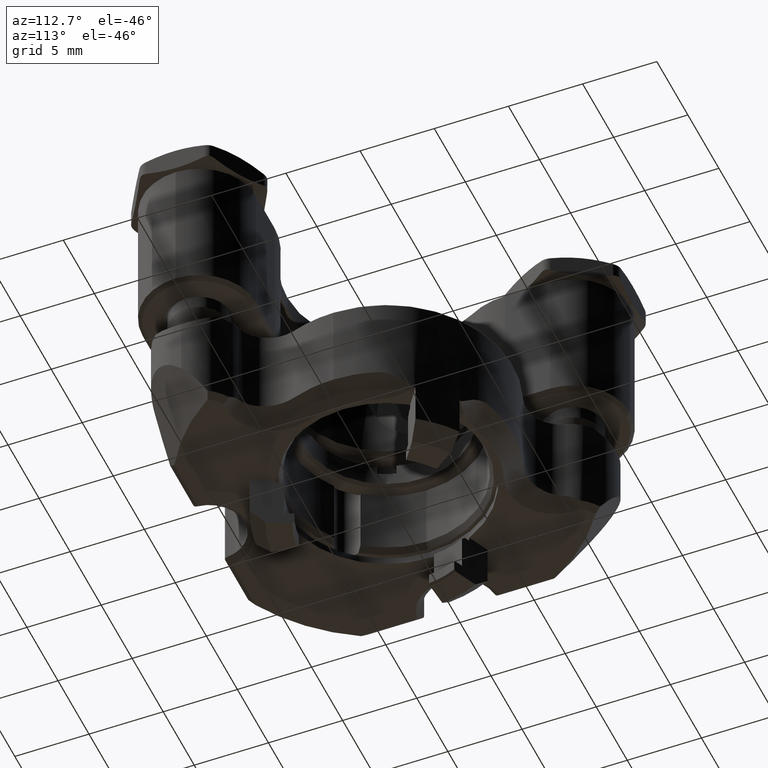
[diagram: clean part render]
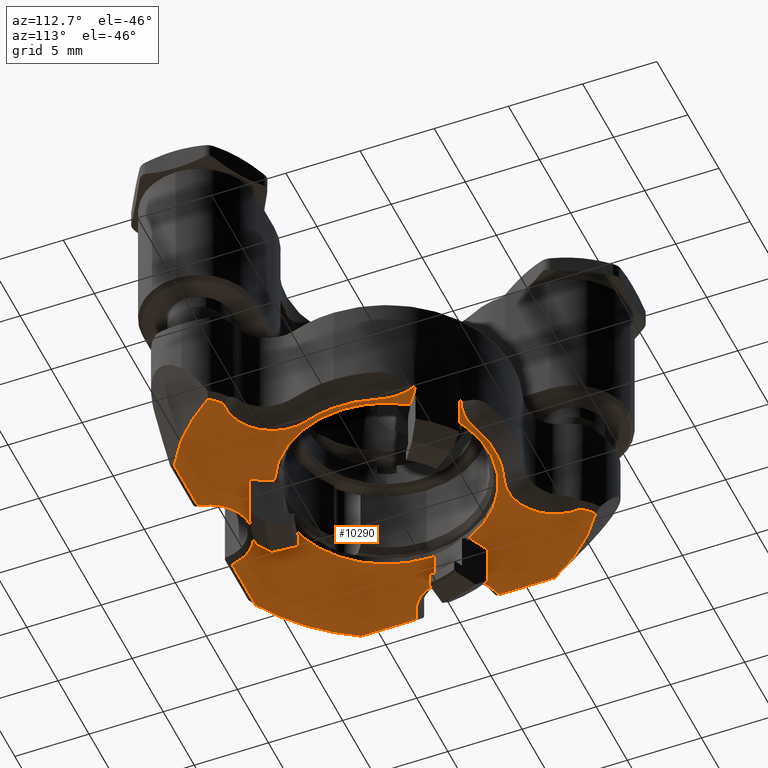
[diagram: same view with one face highlighted and labeled with its STEP entity id]
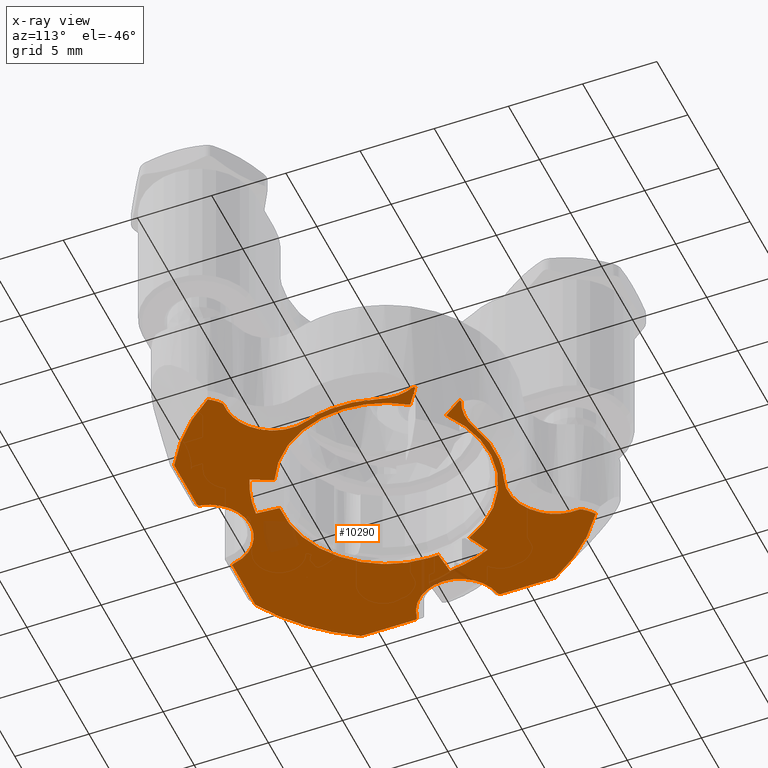
[diagram: x-ray of the same camera — body ghosted, the highlighted face saturated]
A machine part, auxiliary view. The second image highlights one B-rep face of the part: STEP entity #10290.
The next image is the same camera in x-ray: the body ghosted, the highlighted face saturated — about 4% of this face is hidden behind the body in this view.
In plain terms, the highlighted planar face has unit normal (0, 0, -1).
Its self-contained STEP definition (entity closure, byte-faithful):
#105 = CARTESIAN_POINT ( 'NONE',  ( 9.625381360444452028, -0.9384920154934658365, 1.866900000000000670 ) ) ;
#129 = CARTESIAN_POINT ( 'NONE',  ( -0.1349270293056913927, 8.919676375648551314, 1.866900000000004445 ) ) ;
#131 = ORIENTED_EDGE ( 'NONE', *, *, #4356, .T. ) ;
#169 = CIRCLE ( 'NONE', #3546, 3.175000000000000711 ) ;
#345 = CIRCLE ( 'NONE', #2415, 8.509000000000002117 ) ;
#375 = DIRECTION ( 'NONE',  ( 1.000000000000000000, 0.000000000000000000, 0.000000000000000000 ) ) ;
#376 = VECTOR ( 'NONE', #8580, 1000.000000000000114 ) ;
#383 = EDGE_CURVE ( 'NONE', #10112, #14778, #14631, .T. ) ;
#388 = ORIENTED_EDGE ( 'NONE', *, *, #15631, .T. ) ;
#401 = CIRCLE ( 'NONE', #9473, 8.509000000000000341 ) ;
#435 = CARTESIAN_POINT ( 'NONE',  ( 1.125290265099540887, -9.778999999999996362, 1.866900000000000670 ) ) ;
#454 = CARTESIAN_POINT ( 'NONE',  ( -4.523775304290986732, -9.710356770546576755, 1.866900000000000448 ) ) ;
#513 = ORIENTED_EDGE ( 'NONE', *, *, #8160, .F. ) ;
#545 = ORIENTED_EDGE ( 'NONE', *, *, #1460, .F. ) ;
#608 = CARTESIAN_POINT ( 'NONE',  ( 9.766829802217458223, -1.036659752382403266, 1.866900000000000892 ) ) ;
#622 = CARTESIAN_POINT ( 'NONE',  ( 9.710009568648214184, 4.523529990079061314, 1.866900000000000226 ) ) ;
#642 = VERTEX_POINT ( 'NONE', #9741 ) ;
#697 = DIRECTION ( 'NONE',  ( 0.000000000000000000, -0.000000000000000000, -1.000000000000000000 ) ) ;
#710 = B_SPLINE_CURVE_WITH_KNOTS ( 'NONE', 3,
 ( #3404, #11990, #8359, #14686 ),
 .UNSPECIFIED., .F., .F.,
 ( 4, 4 ),
 ( 0.000000000000000000, 0.0001381059229925669452 ),
 .UNSPECIFIED. ) ;
#728 = LINE ( 'NONE', #8125, #9566 ) ;
#729 = VERTEX_POINT ( 'NONE', #12678 ) ;
#770 = CARTESIAN_POINT ( 'NONE',  ( -8.703920634261379519, 4.162785721828859309, 1.866900000000000226 ) ) ;
#799 = CARTESIAN_POINT ( 'NONE',  ( -12.11065533895455104, -4.955829525085864162, 1.866900000000000670 ) ) ;
#800 = CARTESIAN_POINT ( 'NONE',  ( -8.748164744855035480, 6.658561896911045608, 1.866900000000000670 ) ) ;
#915 = CARTESIAN_POINT ( 'NONE',  ( -1.777999999999996694, 1.778000000000000025, 1.866900000000000670 ) ) ;
#937 = VERTEX_POINT ( 'NONE', #15813 ) ;
#1014 = LINE ( 'NONE', #15798, #4776 ) ;
#1019 = LINE ( 'NONE', #13701, #376 ) ;
#1046 = VERTEX_POINT ( 'NONE', #10061 ) ;
#1063 = DIRECTION ( 'NONE',  ( 1.000000000000000000, 0.000000000000000000, 0.000000000000000000 ) ) ;
#1087 = VECTOR ( 'NONE', #14511, 1000.000000000000000 ) ;
#1104 = CARTESIAN_POINT ( 'NONE',  ( 1.761081315064194630, 11.66358740416936790, 1.866900000000011550 ) ) ;
#1142 = AXIS2_PLACEMENT_3D ( 'NONE', #3414, #12879, #3273 ) ;
#1179 = DIRECTION ( 'NONE',  ( 1.000000000000000000, 5.603159228743605945E-16, 0.000000000000000000 ) ) ;
#1235 = VECTOR ( 'NONE', #12403, 999.9999999999998863 ) ;
#1238 = B_SPLINE_CURVE_WITH_KNOTS ( 'NONE', 3,
 ( #2186, #12077, #5943, #2956, #2266, #435 ),
 .UNSPECIFIED., .F., .F.,
 ( 4, 2, 4 ),
 ( 0.000000000000000000, 0.0001318373555152113912, 0.0002636747110304229992 ),
 .UNSPECIFIED. ) ;
#1247 = DIRECTION ( 'NONE',  ( -0.000000000000000000, 0.000000000000000000, 1.000000000000000000 ) ) ;
#1311 = CARTESIAN_POINT ( 'NONE',  ( -1.918867322373763118, 0.1678791375180655188, 1.866900000000000670 ) ) ;
#1316 = CIRCLE ( 'NONE', #11687, 3.175000000000000266 ) ;
#1408 = EDGE_CURVE ( 'NONE', #14047, #2855, #2618, .T. ) ;
#1460 = EDGE_CURVE ( 'NONE', #10441, #15808, #2084, .T. ) ;
#1475 = VERTEX_POINT ( 'NONE', #6227 ) ;
#1526 = VERTEX_POINT ( 'NONE', #11562 ) ;
#1702 = CARTESIAN_POINT ( 'NONE',  ( -12.11065533895455104, -4.955829525085864162, 1.866900000000000670 ) ) ;
#1827 = EDGE_CURVE ( 'NONE', #14098, #14282, #1316, .T. ) ;
#1831 = CARTESIAN_POINT ( 'NONE',  ( -7.478970567433669281, 5.769862566428734851, 1.866900000000000670 ) ) ;
#1935 = CARTESIAN_POINT ( 'NONE',  ( -4.681290265099538495, -9.778999999999998138, 1.866900000000000670 ) ) ;
#1941 = VERTEX_POINT ( 'NONE', #105 ) ;
#1964 = VECTOR ( 'NONE', #15783, 1000.000000000000227 ) ;
#2080 = ORIENTED_EDGE ( 'NONE', *, *, #15993, .T. ) ;
#2084 = CIRCLE ( 'NONE', #11147, 3.175000000000000266 ) ;
#2172 = VERTEX_POINT ( 'NONE', #3662 ) ;
#2173 = VECTOR ( 'NONE', #375, 1000.000000000000000 ) ;
#2181 = EDGE_CURVE ( 'NONE', #9655, #937, #4605, .T. ) ;
#2186 = CARTESIAN_POINT ( 'NONE',  ( 0.9384920154934662806, -9.625381360444446699, 1.866900000000000670 ) ) ;
#2266 = CARTESIAN_POINT ( 'NONE',  ( 1.080837255628039673, -9.778999999999660631, 1.866900000000000226 ) ) ;
#2278 = CARTESIAN_POINT ( 'NONE',  ( -9.084027184002565036, 2.362988505607594991, 1.866900000000000892 ) ) ;
#2342 = DIRECTION ( 'NONE',  ( -0.000000000000000000, -0.000000000000000000, 1.000000000000000000 ) ) ;
#2395 = CARTESIAN_POINT ( 'NONE',  ( -3.282359656813834903, 8.950648278361187593, 1.866899999999997339 ) ) ;
#2415 = AXIS2_PLACEMENT_3D ( 'NONE', #915, #3199, #3363 ) ;
#2419 = VERTEX_POINT ( 'NONE', #1702 ) ;
#2444 = CARTESIAN_POINT ( 'NONE',  ( -8.950648278361198251, 3.282359656813811810, 1.866899999999993787 ) ) ;
#2471 = B_SPLINE_CURVE_WITH_KNOTS ( 'NONE', 3,
 ( #10432, #6958, #5595, #454, #10359, #10518 ),
 .UNSPECIFIED., .F., .F.,
 ( 4, 2, 4 ),
 ( 0.000000000000000000, 0.0001318351666018745900, 0.0002636703332037491801 ),
 .UNSPECIFIED. ) ;
#2591 = LINE ( 'NONE', #12583, #1235 ) ;
#2618 = CIRCLE ( 'NONE', #15320, 6.959600000000000897 ) ;
#2719 = CARTESIAN_POINT ( 'NONE',  ( -5.769862566428733963, 7.478970567433668393, 1.866900000000000670 ) ) ;
#2855 = VERTEX_POINT ( 'NONE', #9079 ) ;
#2900 = DIRECTION ( 'NONE',  ( 0.000000000000000000, -0.000000000000000000, -1.000000000000000000 ) ) ;
#2956 = CARTESIAN_POINT ( 'NONE',  ( 1.036264016352649087, -9.766650101835868014, 1.866900000000000004 ) ) ;
#2980 = CARTESIAN_POINT ( 'NONE',  ( 9.779000000000003467, -0.9905999999999955952, 1.866900000000000670 ) ) ;
#3160 = EDGE_CURVE ( 'NONE', #14778, #13198, #1014, .T. ) ;
#3199 = DIRECTION ( 'NONE',  ( -0.000000000000000000, 0.000000000000000000, 1.000000000000000000 ) ) ;
#3269 = CARTESIAN_POINT ( 'NONE',  ( -11.97965465320958955, -4.920310096600034377, 1.866900000000019322 ) ) ;
#3273 = DIRECTION ( 'NONE',  ( 1.000000000000000000, 0.000000000000000000, 0.000000000000000000 ) ) ;
#3298 = CARTESIAN_POINT ( 'NONE',  ( -10.54099999999999859, -7.112000000000000099, 1.866900000000000670 ) ) ;
#3332 = CARTESIAN_POINT ( 'NONE',  ( -4.494492015493463555, -9.625381360444444923, 1.866900000000000670 ) ) ;
#3363 = DIRECTION ( 'NONE',  ( 1.000000000000000000, 0.000000000000000000, 0.000000000000000000 ) ) ;
#3404 = CARTESIAN_POINT ( 'NONE',  ( 4.955829525085820642, 12.11065533895449420, 1.866900000000000670 ) ) ;
#3414 = CARTESIAN_POINT ( 'NONE',  ( -1.778000000000000247, 1.777999999999998471, 1.866900000000001114 ) ) ;
#3481 = CIRCLE ( 'NONE', #14358, 8.509000000000000341 ) ;
#3546 = AXIS2_PLACEMENT_3D ( 'NONE', #14715, #4327, #5480 ) ;
#3587 = CARTESIAN_POINT ( 'NONE',  ( -9.005163656573085262, 0.5633168964209211982, 1.866899999999997117 ) ) ;
#3602 = LINE ( 'NONE', #1311, #13300 ) ;
#3624 = CARTESIAN_POINT ( 'NONE',  ( 0.2853970343089888284, 8.811679326182735750, 1.866899999999984017 ) ) ;
#3630 = LINE ( 'NONE', #15966, #1087 ) ;
#3662 = CARTESIAN_POINT ( 'NONE',  ( 4.762212404831604573, -9.778999999999996362, 1.866900000000001114 ) ) ;
#3745 = CARTESIAN_POINT ( 'NONE',  ( -1.777999999999996694, 1.778000000000000025, 1.866900000000000670 ) ) ;
#3794 = CARTESIAN_POINT ( 'NONE',  ( -1.777999999999996694, 1.778000000000000025, 1.866900000000000670 ) ) ;
#3807 = ORIENTED_EDGE ( 'NONE', *, *, #5018, .T. ) ;
#3832 = CARTESIAN_POINT ( 'NONE',  ( -8.703920634261379519, 4.162785721828859309, 1.866900000000000226 ) ) ;
#3836 = VERTEX_POINT ( 'NONE', #800 ) ;
#3851 = EDGE_CURVE ( 'NONE', #15272, #15564, #728, .T. ) ;
#3936 = DIRECTION ( 'NONE',  ( 1.000000000000000000, 0.000000000000000000, 0.000000000000000000 ) ) ;
#3939 = CARTESIAN_POINT ( 'NONE',  ( -8.829414443112984401, 6.540419065082113015, 1.866900000000000670 ) ) ;
#4192 = CARTESIAN_POINT ( 'NONE',  ( 0.000000000000000000, -9.778999999999996362, 1.866900000000000670 ) ) ;
#4195 = CARTESIAN_POINT ( 'NONE',  ( -1.777999999999996694, 1.778000000000000025, 1.866900000000000670 ) ) ;
#4240 = CIRCLE ( 'NONE', #9668, 2.768599999999996175 ) ;
#4291 = CIRCLE ( 'NONE', #10499, 6.959600000000000897 ) ;
#4316 = VERTEX_POINT ( 'NONE', #14271 ) ;
#4327 = DIRECTION ( 'NONE',  ( -0.000000000000000000, -0.000000000000000000, -1.000000000000000000 ) ) ;
#4328 = CIRCLE ( 'NONE', #9247, 2.666999999999999371 ) ;
#4341 = DIRECTION ( 'NONE',  ( 1.000000000000000000, 0.000000000000000000, 0.000000000000000000 ) ) ;
#4355 = VERTEX_POINT ( 'NONE', #1831 ) ;
#4356 = EDGE_CURVE ( 'NONE', #14190, #15272, #8816, .T. ) ;
#4417 = CARTESIAN_POINT ( 'NONE',  ( -1.777999999999996694, 1.778000000000000025, 1.866900000000000670 ) ) ;
#4428 = EDGE_CURVE ( 'NONE', #7206, #729, #1019, .T. ) ;
#4437 = ORIENTED_EDGE ( 'NONE', *, *, #1408, .T. ) ;
#4542 = EDGE_CURVE ( 'NONE', #4557, #2172, #15315, .T. ) ;
#4557 = VERTEX_POINT ( 'NONE', #6480 ) ;
#4575 = CARTESIAN_POINT ( 'NONE',  ( 9.779000000000003467, 4.681290265099541159, 1.866900000000000670 ) ) ;
#4578 = CARTESIAN_POINT ( 'NONE',  ( -2.141451694944100037, 0.9985753249214599503, 1.866900000000000670 ) ) ;
#4605 = B_SPLINE_CURVE_WITH_KNOTS ( 'NONE', 3,
 ( #3832, #13565, #7316, #2444, #12339, #2278, #7244, #7566, #4719, #3587, #8776, #12421, #12499, #6111 ),
 .UNSPECIFIED., .F., .F.,
 ( 4, 1, 1, 1, 1, 1, 1, 1, 1, 1, 1, 4 ),
 ( 0.000000000000000000, 0.09229238073140431931, 0.1850363629575620672, 0.2782557791087875154, 0.3719712179321332801, 0.4662075626710489029, 0.5607640757499300355, 0.6494879985155633806, 0.7377545865488499555, 0.8255834482975534794, 0.9129917681144903430, 1.000000000000000000 ),
 .UNSPECIFIED. ) ;
#4625 = ORIENTED_EDGE ( 'NONE', *, *, #13973, .T. ) ;
#4719 = CARTESIAN_POINT ( 'NONE',  ( -9.065123467894503406, 0.9979733131309816985, 1.866900000000007775 ) ) ;
#4734 = DIRECTION ( 'NONE',  ( -0.000000000000000000, 0.000000000000000000, 1.000000000000000000 ) ) ;
#4776 = VECTOR ( 'NONE', #1179, 1000.000000000000000 ) ;
#4806 = AXIS2_PLACEMENT_3D ( 'NONE', #1104, #9804, #7147 ) ;
#4853 = CARTESIAN_POINT ( 'NONE',  ( -2.362988505607625633, 9.084027184002550825, 1.866900000000000226 ) ) ;
#4989 = PLANE ( 'NONE',  #6558 ) ;
#5017 = CIRCLE ( 'NONE', #12224, 6.959600000000000897 ) ;
#5018 = EDGE_CURVE ( 'NONE', #5791, #7342, #4291, .T. ) ;
#5075 = EDGE_CURVE ( 'NONE', #13340, #4557, #1238, .T. ) ;
#5083 = ORIENTED_EDGE ( 'NONE', *, *, #8491, .T. ) ;
#5108 = CARTESIAN_POINT ( 'NONE',  ( 0.5559593694894494620, 8.720071855187708110, 1.866899999999989124 ) ) ;
#5110 = ORIENTED_EDGE ( 'NONE', *, *, #7111, .T. ) ;
#5129 = VERTEX_POINT ( 'NONE', #6178 ) ;
#5134 = AXIS2_PLACEMENT_3D ( 'NONE', #5518, #8182, #12904 ) ;
#5180 = CARTESIAN_POINT ( 'NONE',  ( -1.777999999999998249, 1.778000000000000247, 1.866900000000000670 ) ) ;
#5199 = CARTESIAN_POINT ( 'NONE',  ( -9.678546709602109388, -4.239031766730282591, 1.866900000000006665 ) ) ;
#5242 = ORIENTED_EDGE ( 'NONE', *, *, #12578, .T. ) ;
#5257 = EDGE_CURVE ( 'NONE', #9655, #8391, #15430, .T. ) ;
#5338 = AXIS2_PLACEMENT_3D ( 'NONE', #7804, #12751, #15657 ) ;
#5351 = DIRECTION ( 'NONE',  ( 1.000000000000000000, 0.000000000000000000, 0.000000000000000000 ) ) ;
#5412 = ORIENTED_EDGE ( 'NONE', *, *, #13731, .T. ) ;
#5449 = EDGE_CURVE ( 'NONE', #642, #14282, #6467, .T. ) ;
#5480 = DIRECTION ( 'NONE',  ( -1.000000000000000000, 0.000000000000000000, 0.000000000000000000 ) ) ;
#5518 = CARTESIAN_POINT ( 'NONE',  ( -1.777999999999996694, 1.778000000000000025, 1.866900000000000670 ) ) ;
#5523 = CARTESIAN_POINT ( 'NONE',  ( 4.239031766730246176, 9.678546709602121823, 1.866900000000006887 ) ) ;
#5595 = CARTESIAN_POINT ( 'NONE',  ( -4.592659752382400207, -9.766829802217454670, 1.866900000000000892 ) ) ;
#5658 = DIRECTION ( 'NONE',  ( 1.000000000000000000, -2.043900871172167258E-14, 0.000000000000000000 ) ) ;
#5791 = VERTEX_POINT ( 'NONE', #12347 ) ;
#5943 = CARTESIAN_POINT ( 'NONE',  ( 0.9675299900790605978, -9.710009568648215961, 1.866900000000000448 ) ) ;
#6068 = CARTESIAN_POINT ( 'NONE',  ( -2.825789352589689774, 9.031824606264086341, 1.866899999999995119 ) ) ;
#6111 = CARTESIAN_POINT ( 'NONE',  ( -8.674373187251790185, -0.6909302204155249871, 1.866899999999993565 ) ) ;
#6178 = CARTESIAN_POINT ( 'NONE',  ( -2.519608215039893295, -6.698620686062659146, 1.866900000000000670 ) ) ;
#6227 = CARTESIAN_POINT ( 'NONE',  ( 4.920310096599995298, 11.97965465320954159, 1.866900000000019544 ) ) ;
#6296 = DIRECTION ( 'NONE',  ( -0.000000000000000000, 0.000000000000000000, 1.000000000000000000 ) ) ;
#6316 = CIRCLE ( 'NONE', #12790, 3.175000000000000266 ) ;
#6467 = B_SPLINE_CURVE_WITH_KNOTS ( 'NONE', 3,
 ( #7529, #12456, #13523, #2395, #6068, #4853, #7454, #10990, #9784, #14745, #129, #3624, #5108, #8820 ),
 .UNSPECIFIED., .F., .F.,
 ( 4, 1, 1, 1, 1, 1, 1, 1, 1, 1, 1, 4 ),
 ( 0.000000000000000000, 0.09229238073140491605, 0.1850363629575616786, 0.2782557791087879040, 0.3719712179321335577, 0.4662075626710504572, 0.5607640757499309236, 0.6494879985155634916, 0.7377545865488489563, 0.8255834482975537014, 0.9129917681144904540, 1.000000000000000000 ),
 .UNSPECIFIED. ) ;
#6480 = CARTESIAN_POINT ( 'NONE',  ( 1.125290265099540887, -9.778999999999996362, 1.866900000000000670 ) ) ;
#6487 = CARTESIAN_POINT ( 'NONE',  ( 9.779000000000028336, -1.080895046484262378, 1.866900000000001114 ) ) ;
#6488 = ORIENTED_EDGE ( 'NONE', *, *, #11784, .T. ) ;
#6558 = AXIS2_PLACEMENT_3D ( 'NONE', #8480, #4734, #1063 ) ;
#6725 = ORIENTED_EDGE ( 'NONE', *, *, #12021, .T. ) ;
#6798 = ORIENTED_EDGE ( 'NONE', *, *, #13578, .T. ) ;
#6808 = CARTESIAN_POINT ( 'NONE',  ( 9.625381360444452028, 4.494492015493467107, 1.866900000000000670 ) ) ;
#6810 = CARTESIAN_POINT ( 'NONE',  ( 9.779000000000003467, 8.318212404831587747, 1.866900000000001114 ) ) ;
#6896 = CARTESIAN_POINT ( 'NONE',  ( 9.766650101835878672, 4.592264016352650913, 1.866900000000000448 ) ) ;
#6958 = CARTESIAN_POINT ( 'NONE',  ( -4.636895046484259097, -9.779000000000024784, 1.866900000000000670 ) ) ;
#6994 = DIRECTION ( 'NONE',  ( 0.000000000000000000, 1.000000000000000000, 0.000000000000000000 ) ) ;
#7011 = VERTEX_POINT ( 'NONE', #13208 ) ;
#7044 = DIRECTION ( 'NONE',  ( 5.056735859744324028E-15, 2.055421935328132438E-15, 1.000000000000000000 ) ) ;
#7111 = EDGE_CURVE ( 'NONE', #3836, #8391, #3481, .T. ) ;
#7130 = CARTESIAN_POINT ( 'NONE',  ( 9.625381360444452028, 4.494492015493467107, 1.866900000000000670 ) ) ;
#7140 = AXIS2_PLACEMENT_3D ( 'NONE', #8527, #2342, #11510 ) ;
#7147 = DIRECTION ( 'NONE',  ( -0.7804568351704098683, 0.6252096675802348846, 1.570812596356951104E-15 ) ) ;
#7191 = CARTESIAN_POINT ( 'NONE',  ( -0.1678791375180380407, 1.918867322373746909, 1.866900000000000670 ) ) ;
#7206 = VERTEX_POINT ( 'NONE', #2719 ) ;
#7207 = CARTESIAN_POINT ( 'NONE',  ( 0.6909302204154994520, 8.674373187251783079, 1.866899999999993787 ) ) ;
#7244 = CARTESIAN_POINT ( 'NONE',  ( -9.106971716330473754, 1.898199977877198963, 1.866899999999994453 ) ) ;
#7256 = FACE_OUTER_BOUND ( 'NONE', #14444, .T. ) ;
#7289 = ORIENTED_EDGE ( 'NONE', *, *, #8398, .T. ) ;
#7306 = CARTESIAN_POINT ( 'NONE',  ( -1.778000000000000247, 1.777999999999998471, 1.866900000000001114 ) ) ;
#7316 = CARTESIAN_POINT ( 'NONE',  ( -8.843909922356914421, 3.730594926594517080, 1.866900000000001558 ) ) ;
#7335 = DIRECTION ( 'NONE',  ( -0.08715574274766672846, -0.9961946980917447680, 0.000000000000000000 ) ) ;
#7342 = VERTEX_POINT ( 'NONE', #9597 ) ;
#7376 = ORIENTED_EDGE ( 'NONE', *, *, #10052, .F. ) ;
#7387 = CIRCLE ( 'NONE', #12586, 6.959600000000000897 ) ;
#7414 = EDGE_CURVE ( 'NONE', #14047, #7011, #15694, .T. ) ;
#7441 = CARTESIAN_POINT ( 'NONE',  ( -1.778000000000000247, 1.777999999999998471, 1.866900000000001114 ) ) ;
#7454 = CARTESIAN_POINT ( 'NONE',  ( -1.898199977877247813, 9.106971716330461319, 1.866899999999993787 ) ) ;
#7508 = ORIENTED_EDGE ( 'NONE', *, *, #14732, .F. ) ;
#7529 = CARTESIAN_POINT ( 'NONE',  ( -4.162785721828899277, 8.703920634261359979, 1.866900000000000226 ) ) ;
#7543 = ORIENTED_EDGE ( 'NONE', *, *, #15921, .T. ) ;
#7566 = CARTESIAN_POINT ( 'NONE',  ( -9.099987269601236051, 1.444960255202415889, 1.866900000000007109 ) ) ;
#7649 = ORIENTED_EDGE ( 'NONE', *, *, #2181, .T. ) ;
#7695 = CARTESIAN_POINT ( 'NONE',  ( -11.66358740416936612, -1.761081315064239039, 1.866900000000011328 ) ) ;
#7804 = CARTESIAN_POINT ( 'NONE',  ( -1.777999999999998249, -10.16000000000000014, 1.866900000000000670 ) ) ;
#7938 = CARTESIAN_POINT ( 'NONE',  ( -1.777999999999996694, 1.778000000000000025, 1.866900000000000670 ) ) ;
#8016 = DIRECTION ( 'NONE',  ( -0.000000000000000000, 0.000000000000000000, 1.000000000000000000 ) ) ;
#8055 = ORIENTED_EDGE ( 'NONE', *, *, #9577, .T. ) ;
#8066 = DIRECTION ( 'NONE',  ( 1.000000000000000000, 0.000000000000000000, 0.000000000000000000 ) ) ;
#8120 = ORIENTED_EDGE ( 'NONE', *, *, #7414, .F. ) ;
#8125 = CARTESIAN_POINT ( 'NONE',  ( 9.779000000000003467, 7.593735834811704777, 1.866900000000000670 ) ) ;
#8160 = EDGE_CURVE ( 'NONE', #7011, #5129, #13628, .T. ) ;
#8166 = LINE ( 'NONE', #7191, #1964 ) ;
#8182 = DIRECTION ( 'NONE',  ( 0.000000000000000000, -0.000000000000000000, -1.000000000000000000 ) ) ;
#8220 = CIRCLE ( 'NONE', #10291, 13.27925552507794293 ) ;
#8300 = CARTESIAN_POINT ( 'NONE',  ( -2.384569107226658602, -5.155116620839308439, 1.866900000000000670 ) ) ;
#8341 = CARTESIAN_POINT ( 'NONE',  ( -11.66358740416936612, -1.761081315064239039, 1.866900000000011328 ) ) ;
#8359 = CARTESIAN_POINT ( 'NONE',  ( 4.915653172187125719, 12.02620262577337762, 1.866900000000000670 ) ) ;
#8391 = VERTEX_POINT ( 'NONE', #3939 ) ;
#8398 = EDGE_CURVE ( 'NONE', #10944, #729, #401, .T. ) ;
#8480 = CARTESIAN_POINT ( 'NONE',  ( 0.000000000000000000, 0.000000000000000000, 1.866900000000000670 ) ) ;
#8491 = EDGE_CURVE ( 'NONE', #2172, #1046, #12872, .T. ) ;
#8527 = CARTESIAN_POINT ( 'NONE',  ( -11.70594211178921107, 5.196464612230333735, 1.866900000000000670 ) ) ;
#8532 = ORIENTED_EDGE ( 'NONE', *, *, #1827, .T. ) ;
#8580 = DIRECTION ( 'NONE',  ( -0.5735764363510457153, 0.8191520442889920206, 0.000000000000000000 ) ) ;
#8629 = VECTOR ( 'NONE', #14023, 1000.000000000000000 ) ;
#8687 = DIRECTION ( 'NONE',  ( -0.000000000000000000, 0.000000000000000000, 1.000000000000000000 ) ) ;
#8736 = CARTESIAN_POINT ( 'NONE',  ( -6.540419065082147654, 8.829414443112963085, 1.866900000000000670 ) ) ;
#8776 = CARTESIAN_POINT ( 'NONE',  ( -8.919676375648547761, 0.1349270293056485659, 1.866900000000004889 ) ) ;
#8816 = B_SPLINE_CURVE_WITH_KNOTS ( 'NONE', 3,
 ( #6808, #11736, #622, #6896, #16048, #11076 ),
 .UNSPECIFIED., .F., .F.,
 ( 4, 2, 4 ),
 ( 0.000000000000000000, 0.0001318373555152122314, 0.0002636747110304244628 ),
 .UNSPECIFIED. ) ;
#8820 = CARTESIAN_POINT ( 'NONE',  ( 0.6909302204154994520, 8.674373187251783079, 1.866899999999993787 ) ) ;
#8909 = EDGE_CURVE ( 'NONE', #642, #10944, #169, .T. ) ;
#8923 = VECTOR ( 'NONE', #9438, 1000.000000000000000 ) ;
#9061 = DIRECTION ( 'NONE',  ( 0.000000000000000000, -0.000000000000000000, -1.000000000000000000 ) ) ;
#9079 = CARTESIAN_POINT ( 'NONE',  ( -8.737599999999998701, 1.778000000000000913, 1.866900000000000670 ) ) ;
#9118 = DIRECTION ( 'NONE',  ( 0.000000000000000000, -0.000000000000000000, -1.000000000000000000 ) ) ;
#9148 = ORIENTED_EDGE ( 'NONE', *, *, #4542, .T. ) ;
#9155 = CARTESIAN_POINT ( 'NONE',  ( -4.719254054410627397, -4.529539674660242099, 1.866900000000000670 ) ) ;
#9238 = AXIS2_PLACEMENT_3D ( 'NONE', #7441, #1247, #8066 ) ;
#9247 = AXIS2_PLACEMENT_3D ( 'NONE', #15459, #11388, #4341 ) ;
#9262 = EDGE_CURVE ( 'NONE', #15564, #15101, #8220, .T. ) ;
#9336 = ORIENTED_EDGE ( 'NONE', *, *, #5449, .F. ) ;
#9338 = CARTESIAN_POINT ( 'NONE',  ( -12.07283494455324657, -4.928296922872544172, 1.866900000000000670 ) ) ;
#9394 = EDGE_CURVE ( 'NONE', #15808, #937, #6316, .T. ) ;
#9407 = ORIENTED_EDGE ( 'NONE', *, *, #9595, .T. ) ;
#9438 = DIRECTION ( 'NONE',  ( -0.4226182617407078235, -0.9063077870366460509, 0.000000000000000000 ) ) ;
#9473 = AXIS2_PLACEMENT_3D ( 'NONE', #13933, #6296, #15139 ) ;
#9532 = CARTESIAN_POINT ( 'NONE',  ( -8.318212404831601958, -9.778999999999999915, 1.866900000000001114 ) ) ;
#9566 = VECTOR ( 'NONE', #6994, 1000.000000000000000 ) ;
#9577 = EDGE_CURVE ( 'NONE', #10418, #1941, #15563, .T. ) ;
#9595 = EDGE_CURVE ( 'NONE', #1941, #14190, #4240, .T. ) ;
#9597 = CARTESIAN_POINT ( 'NONE',  ( 5.181600000000003980, 1.778000000000000025, 1.866900000000000670 ) ) ;
#9655 = VERTEX_POINT ( 'NONE', #770 ) ;
#9668 = AXIS2_PLACEMENT_3D ( 'NONE', #13369, #697, #15864 ) ;
#9728 = ORIENTED_EDGE ( 'NONE', *, *, #3851, .T. ) ;
#9741 = CARTESIAN_POINT ( 'NONE',  ( -4.162785721828899277, 8.703920634261359979, 1.866900000000000226 ) ) ;
#9771 = DIRECTION ( 'NONE',  ( 1.000000000000000000, 0.000000000000000000, 0.000000000000000000 ) ) ;
#9784 = CARTESIAN_POINT ( 'NONE',  ( -0.9979733131310214445, 9.065123467894492748, 1.866900000000005111 ) ) ;
#9804 = DIRECTION ( 'NONE',  ( 2.055421935328094573E-15, 5.056735859744282219E-15, -1.000000000000000000 ) ) ;
#9816 = DIRECTION ( 'NONE',  ( 1.000000000000000000, 0.000000000000000000, 0.000000000000000000 ) ) ;
#9992 = DIRECTION ( 'NONE',  ( 0.000000000000000000, -0.000000000000000000, -1.000000000000000000 ) ) ;
#9994 = VERTEX_POINT ( 'NONE', #15379 ) ;
#10038 = CIRCLE ( 'NONE', #5134, 6.959600000000000897 ) ;
#10045 = ORIENTED_EDGE ( 'NONE', *, *, #4428, .F. ) ;
#10052 = EDGE_CURVE ( 'NONE', #16056, #4316, #345, .T. ) ;
#10061 = CARTESIAN_POINT ( 'NONE',  ( 9.779000000000003467, -4.762212404831592139, 1.866900000000001114 ) ) ;
#10112 = VERTEX_POINT ( 'NONE', #15541 ) ;
#10210 = CARTESIAN_POINT ( 'NONE',  ( 9.668997778835771939, -0.9470759355374639421, 1.866900000000000226 ) ) ;
#10212 = ORIENTED_EDGE ( 'NONE', *, *, #15896, .T. ) ;
#10290 = ADVANCED_FACE ( 'NONE', ( #7256 ), #4989, .T. ) ;
#10291 = AXIS2_PLACEMENT_3D ( 'NONE', #7306, #8687, #9816 ) ;
#10297 = EDGE_CURVE ( 'NONE', #12963, #5129, #3602, .T. ) ;
#10359 = CARTESIAN_POINT ( 'NONE',  ( -4.503075935537460772, -9.668997778835764834, 1.866900000000000670 ) ) ;
#10418 = VERTEX_POINT ( 'NONE', #15044 ) ;
#10432 = CARTESIAN_POINT ( 'NONE',  ( -4.681290265099538495, -9.778999999999998138, 1.866900000000000670 ) ) ;
#10441 = VERTEX_POINT ( 'NONE', #3269 ) ;
#10499 = AXIS2_PLACEMENT_3D ( 'NONE', #4417, #9118, #5658 ) ;
#10518 = CARTESIAN_POINT ( 'NONE',  ( -4.494492015493463555, -9.625381360444444923, 1.866900000000000670 ) ) ;
#10588 = CARTESIAN_POINT ( 'NONE',  ( 1.761081315064194630, 11.66358740416936790, 1.866900000000011550 ) ) ;
#10703 = CARTESIAN_POINT ( 'NONE',  ( -11.97965465320958955, -4.920310096600034377, 1.866900000000019322 ) ) ;
#10944 = VERTEX_POINT ( 'NONE', #8736 ) ;
#10990 = CARTESIAN_POINT ( 'NONE',  ( -1.444960255202452304, 9.099987269601225393, 1.866899999999996673 ) ) ;
#11076 = CARTESIAN_POINT ( 'NONE',  ( 9.779000000000003467, 4.681290265099541159, 1.866900000000000670 ) ) ;
#11147 = AXIS2_PLACEMENT_3D ( 'NONE', #7695, #11237, #13768 ) ;
#11237 = DIRECTION ( 'NONE',  ( 5.056735859744324028E-15, 2.055421935328132438E-15, 1.000000000000000000 ) ) ;
#11388 = DIRECTION ( 'NONE',  ( -0.000000000000000000, 0.000000000000000000, 1.000000000000000000 ) ) ;
#11414 = CARTESIAN_POINT ( 'NONE',  ( 9.710356770546582084, -0.9677753042909905679, 1.866900000000000004 ) ) ;
#11457 = ORIENTED_EDGE ( 'NONE', *, *, #8909, .T. ) ;
#11510 = DIRECTION ( 'NONE',  ( -3.824587191129967323E-15, 1.000000000000000000, 0.000000000000000000 ) ) ;
#11562 = CARTESIAN_POINT ( 'NONE',  ( 4.529539674660286508, 4.719254054410545685, 1.866900000000000670 ) ) ;
#11644 = LINE ( 'NONE', #2980, #8629 ) ;
#11687 = AXIS2_PLACEMENT_3D ( 'NONE', #10588, #15545, #13117 ) ;
#11725 = CARTESIAN_POINT ( 'NONE',  ( 9.779000000000003467, -1.125290265099540665, 1.866900000000000670 ) ) ;
#11736 = CARTESIAN_POINT ( 'NONE',  ( 9.668939161623606893, 4.503064399389907102, 1.866900000000000226 ) ) ;
#11784 = EDGE_CURVE ( 'NONE', #2855, #4355, #7387, .T. ) ;
#11813 = ORIENTED_EDGE ( 'NONE', *, *, #9262, .T. ) ;
#11846 = CARTESIAN_POINT ( 'NONE',  ( -12.02620291887224369, -4.915653142862932867, 1.866900000000019322 ) ) ;
#11990 = CARTESIAN_POINT ( 'NONE',  ( 4.928296749108811881, 12.07283470585984197, 1.866900000000000448 ) ) ;
#12021 = EDGE_CURVE ( 'NONE', #13773, #13340, #13358, .T. ) ;
#12077 = CARTESIAN_POINT ( 'NONE',  ( 0.9470643993899086066, -9.668939161623599787, 1.866900000000000670 ) ) ;
#12152 = EDGE_CURVE ( 'NONE', #1475, #14098, #15942, .T. ) ;
#12165 = CARTESIAN_POINT ( 'NONE',  ( 0.9384920154934662806, -9.625381360444446699, 1.866900000000000670 ) ) ;
#12224 = AXIS2_PLACEMENT_3D ( 'NONE', #7938, #2900, #13125 ) ;
#12339 = CARTESIAN_POINT ( 'NONE',  ( -9.031824606264093447, 2.825789352589655579, 1.866900000000000448 ) ) ;
#12347 = CARTESIAN_POINT ( 'NONE',  ( 5.155116620839319097, 2.384569107226568452, 1.866900000000000670 ) ) ;
#12403 = DIRECTION ( 'NONE',  ( 0.9063077870366518241, 0.4226182617406955555, 0.000000000000000000 ) ) ;
#12421 = CARTESIAN_POINT ( 'NONE',  ( -8.811679326182753513, -0.2853970343090207473, 1.866900000000002446 ) ) ;
#12456 = CARTESIAN_POINT ( 'NONE',  ( -4.018956716253071271, 8.750507744213882333, 1.866899999999997783 ) ) ;
#12499 = CARTESIAN_POINT ( 'NONE',  ( -8.720071855187720544, -0.5559593694894828797, 1.866899999999997561 ) ) ;
#12578 = EDGE_CURVE ( 'NONE', #7342, #12963, #10038, .T. ) ;
#12583 = CARTESIAN_POINT ( 'NONE',  ( -0.9985753249214266436, 2.141451694944104922, 1.866900000000000670 ) ) ;
#12586 = AXIS2_PLACEMENT_3D ( 'NONE', #3745, #9992, #13724 ) ;
#12678 = CARTESIAN_POINT ( 'NONE',  ( -6.658561896911046496, 8.748164744855033703, 1.866900000000000670 ) ) ;
#12751 = DIRECTION ( 'NONE',  ( 0.000000000000000000, -0.000000000000000000, -1.000000000000000000 ) ) ;
#12790 = AXIS2_PLACEMENT_3D ( 'NONE', #8341, #7044, #13145 ) ;
#12872 = CIRCLE ( 'NONE', #9238, 13.27925552507794293 ) ;
#12879 = DIRECTION ( 'NONE',  ( -0.000000000000000000, 0.000000000000000000, 1.000000000000000000 ) ) ;
#12904 = DIRECTION ( 'NONE',  ( 1.000000000000000000, 0.000000000000000000, 0.000000000000000000 ) ) ;
#12963 = VERTEX_POINT ( 'NONE', #8300 ) ;
#13117 = DIRECTION ( 'NONE',  ( -0.7804568351704098683, 0.6252096675802348846, 1.570812596356951104E-15 ) ) ;
#13125 = DIRECTION ( 'NONE',  ( 1.000000000000000000, 1.775950452085572232E-15, 0.000000000000000000 ) ) ;
#13127 = AXIS2_PLACEMENT_3D ( 'NONE', #4195, #8016, #14330 ) ;
#13145 = DIRECTION ( 'NONE',  ( -0.6252096675802376602, 0.7804568351704075369, 1.570812596356951104E-15 ) ) ;
#13163 = ORIENTED_EDGE ( 'NONE', *, *, #10297, .T. ) ;
#13198 = VERTEX_POINT ( 'NONE', #1935 ) ;
#13208 = CARTESIAN_POINT ( 'NONE',  ( -5.374058789151681559, -5.933772959894825227, 1.866900000000000670 ) ) ;
#13240 = ORIENTED_EDGE ( 'NONE', *, *, #12152, .T. ) ;
#13291 = CIRCLE ( 'NONE', #14578, 2.666999999999997595 ) ;
#13300 = VECTOR ( 'NONE', #7335, 1000.000000000000114 ) ;
#13340 = VERTEX_POINT ( 'NONE', #12165 ) ;
#13358 = CIRCLE ( 'NONE', #5338, 2.768599999999996175 ) ;
#13369 = CARTESIAN_POINT ( 'NONE',  ( 10.16000000000000014, 1.778000000000000469, 1.866900000000000670 ) ) ;
#13431 = ORIENTED_EDGE ( 'NONE', *, *, #3160, .T. ) ;
#13450 = ORIENTED_EDGE ( 'NONE', *, *, #16044, .T. ) ;
#13523 = CARTESIAN_POINT ( 'NONE',  ( -3.730594926594560157, 8.843909922356901987, 1.866899999999995563 ) ) ;
#13565 = CARTESIAN_POINT ( 'NONE',  ( -8.750507744213898320, 4.018956716253036632, 1.866900000000001336 ) ) ;
#13578 = EDGE_CURVE ( 'NONE', #10441, #2419, #14459, .T. ) ;
#13628 = CIRCLE ( 'NONE', #13127, 8.509000000000003894 ) ;
#13701 = CARTESIAN_POINT ( 'NONE',  ( -0.3576691675378456114, -0.2504426472951908900, 1.866900000000000670 ) ) ;
#13724 = DIRECTION ( 'NONE',  ( 1.000000000000000000, 0.000000000000000000, 0.000000000000000000 ) ) ;
#13731 = EDGE_CURVE ( 'NONE', #9994, #1475, #710, .T. ) ;
#13768 = DIRECTION ( 'NONE',  ( -0.6252096675802376602, 0.7804568351704075369, 1.570812596356951104E-15 ) ) ;
#13773 = VERTEX_POINT ( 'NONE', #3332 ) ;
#13933 = CARTESIAN_POINT ( 'NONE',  ( -1.777999999999998249, 1.778000000000000247, 1.866900000000000670 ) ) ;
#13973 = EDGE_CURVE ( 'NONE', #1526, #4316, #2591, .T. ) ;
#14023 = DIRECTION ( 'NONE',  ( 0.000000000000000000, 1.000000000000000000, 0.000000000000000000 ) ) ;
#14047 = VERTEX_POINT ( 'NONE', #9155 ) ;
#14079 = CARTESIAN_POINT ( 'NONE',  ( 5.660436928145132995, 12.77837651020726817, 1.866900000000001114 ) ) ;
#14098 = VERTEX_POINT ( 'NONE', #5523 ) ;
#14190 = VERTEX_POINT ( 'NONE', #7130 ) ;
#14230 = ORIENTED_EDGE ( 'NONE', *, *, #15161, .T. ) ;
#14271 = CARTESIAN_POINT ( 'NONE',  ( 5.933772959894875854, 5.374058789151580307, 1.866900000000000670 ) ) ;
#14282 = VERTEX_POINT ( 'NONE', #7207 ) ;
#14330 = DIRECTION ( 'NONE',  ( 1.000000000000000000, 0.000000000000000000, 0.000000000000000000 ) ) ;
#14358 = AXIS2_PLACEMENT_3D ( 'NONE', #5180, #14898, #3936 ) ;
#14444 = EDGE_LOOP ( 'NONE', ( #10212, #8055, #9407, #131, #9728, #11813, #14230, #5412, #13240, #8532, #9336, #11457, #7289, #10045, #7543, #4625, #7376, #7508, #3807, #5242, #13163, #513, #8120, #4437, #6488, #388, #5110, #15472, #7649, #15338, #545, #6798, #13450, #14762, #13431, #2080, #6725, #16000, #9148, #5083 ) ) ;
#14459 = B_SPLINE_CURVE_WITH_KNOTS ( 'NONE', 3,
 ( #10703, #11846, #9338, #799 ),
 .UNSPECIFIED., .F., .F.,
 ( 4, 4 ),
 ( 0.000000000000000000, 0.0001381051103782563057 ),
 .UNSPECIFIED. ) ;
#14492 = DIRECTION ( 'NONE',  ( -0.000000000000000000, 0.000000000000000000, 1.000000000000000000 ) ) ;
#14511 = DIRECTION ( 'NONE',  ( -0.8191520442889924647, 0.5735764363510452712, 0.000000000000000000 ) ) ;
#14578 = AXIS2_PLACEMENT_3D ( 'NONE', #3298, #14492, #9771 ) ;
#14631 = CIRCLE ( 'NONE', #1142, 13.27925552507794293 ) ;
#14686 = CARTESIAN_POINT ( 'NONE',  ( 4.920310096599995298, 11.97965465320954159, 1.866900000000019544 ) ) ;
#14715 = CARTESIAN_POINT ( 'NONE',  ( -5.196464612230375479, 11.70594211178919153, 1.866900000000000670 ) ) ;
#14730 = CARTESIAN_POINT ( 'NONE',  ( 6.698620686062673357, 2.519608215039782273, 1.866900000000000670 ) ) ;
#14732 = EDGE_CURVE ( 'NONE', #5791, #16056, #8166, .T. ) ;
#14745 = CARTESIAN_POINT ( 'NONE',  ( -0.5633168964209411822, 9.005163656573071052, 1.866899999999993121 ) ) ;
#14762 = ORIENTED_EDGE ( 'NONE', *, *, #383, .T. ) ;
#14778 = VERTEX_POINT ( 'NONE', #9532 ) ;
#14898 = DIRECTION ( 'NONE',  ( -0.000000000000000000, 0.000000000000000000, 1.000000000000000000 ) ) ;
#15044 = CARTESIAN_POINT ( 'NONE',  ( 9.779000000000003467, -1.125290265099540665, 1.866900000000000670 ) ) ;
#15101 = VERTEX_POINT ( 'NONE', #14079 ) ;
#15139 = DIRECTION ( 'NONE',  ( 1.000000000000000000, 0.000000000000000000, 0.000000000000000000 ) ) ;
#15161 = EDGE_CURVE ( 'NONE', #15101, #9994, #4328, .T. ) ;
#15166 = CARTESIAN_POINT ( 'NONE',  ( 9.625381360444452028, -0.9384920154934658365, 1.866900000000000670 ) ) ;
#15272 = VERTEX_POINT ( 'NONE', #4575 ) ;
#15315 = LINE ( 'NONE', #4192, #2173 ) ;
#15320 = AXIS2_PLACEMENT_3D ( 'NONE', #3794, #9061, #5351 ) ;
#15338 = ORIENTED_EDGE ( 'NONE', *, *, #9394, .F. ) ;
#15379 = CARTESIAN_POINT ( 'NONE',  ( 4.955829525085820642, 12.11065533895449420, 1.866900000000000670 ) ) ;
#15430 = CIRCLE ( 'NONE', #7140, 3.175000000000000711 ) ;
#15459 = CARTESIAN_POINT ( 'NONE',  ( 7.112000000000000099, 10.54099999999999859, 1.866900000000000670 ) ) ;
#15472 = ORIENTED_EDGE ( 'NONE', *, *, #5257, .F. ) ;
#15541 = CARTESIAN_POINT ( 'NONE',  ( -12.77837651020726817, -5.660436928145136548, 1.866900000000001114 ) ) ;
#15545 = DIRECTION ( 'NONE',  ( 2.055421935328094573E-15, 5.056735859744282219E-15, -1.000000000000000000 ) ) ;
#15563 = B_SPLINE_CURVE_WITH_KNOTS ( 'NONE', 3,
 ( #11725, #6487, #608, #11414, #10210, #15166 ),
 .UNSPECIFIED., .F., .F.,
 ( 4, 2, 4 ),
 ( 0.000000000000000000, 0.0001318351666018744003, 0.0002636703332037485296 ),
 .UNSPECIFIED. ) ;
#15564 = VERTEX_POINT ( 'NONE', #6810 ) ;
#15631 = EDGE_CURVE ( 'NONE', #4355, #3836, #3630, .T. ) ;
#15657 = DIRECTION ( 'NONE',  ( 1.000000000000000000, 6.265706407486850341E-16, 0.000000000000000000 ) ) ;
#15694 = LINE ( 'NONE', #4578, #8923 ) ;
#15783 = DIRECTION ( 'NONE',  ( 0.9961946980917458783, 0.08715574274765329477, 0.000000000000000000 ) ) ;
#15798 = CARTESIAN_POINT ( 'NONE',  ( 5.479329409788369073E-15, -9.778999999999994586, 1.866900000000000670 ) ) ;
#15808 = VERTEX_POINT ( 'NONE', #5199 ) ;
#15813 = CARTESIAN_POINT ( 'NONE',  ( -8.674373187251790185, -0.6909302204155249871, 1.866899999999993565 ) ) ;
#15864 = DIRECTION ( 'NONE',  ( 1.000000000000000000, 0.000000000000000000, 0.000000000000000000 ) ) ;
#15896 = EDGE_CURVE ( 'NONE', #1046, #10418, #11644, .T. ) ;
#15921 = EDGE_CURVE ( 'NONE', #7206, #1526, #5017, .T. ) ;
#15942 = CIRCLE ( 'NONE', #4806, 3.175000000000000266 ) ;
#15966 = CARTESIAN_POINT ( 'NONE',  ( 0.2504426472951943872, 0.3576691675378511626, 1.866900000000000670 ) ) ;
#15993 = EDGE_CURVE ( 'NONE', #13198, #13773, #2471, .T. ) ;
#16000 = ORIENTED_EDGE ( 'NONE', *, *, #5075, .T. ) ;
#16044 = EDGE_CURVE ( 'NONE', #2419, #10112, #13291, .T. ) ;
#16048 = CARTESIAN_POINT ( 'NONE',  ( 9.778999999999669512, 4.636837255628041277, 1.866900000000000670 ) ) ;
#16056 = VERTEX_POINT ( 'NONE', #14730 ) ;